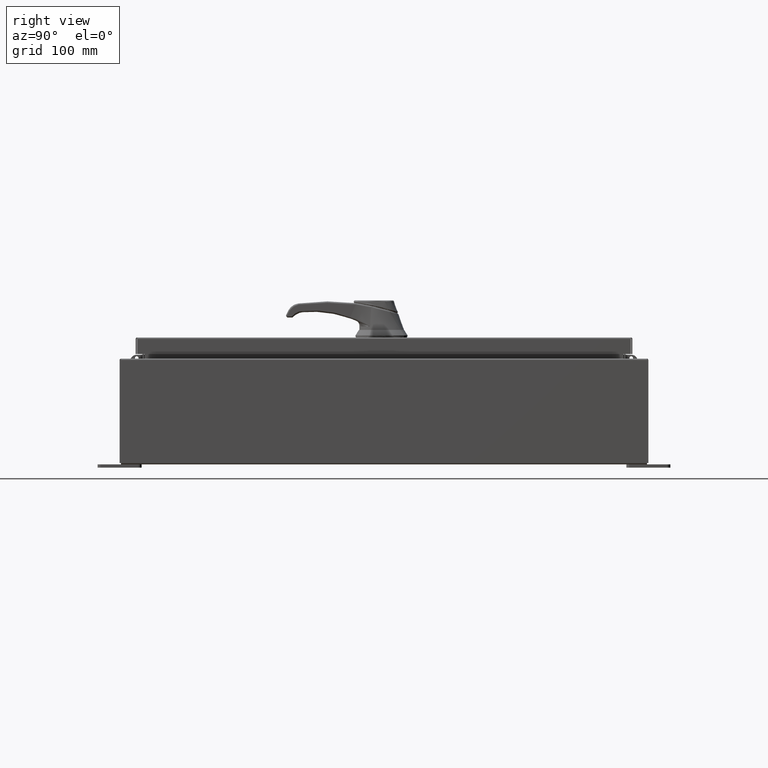
[diagram: clean part render]
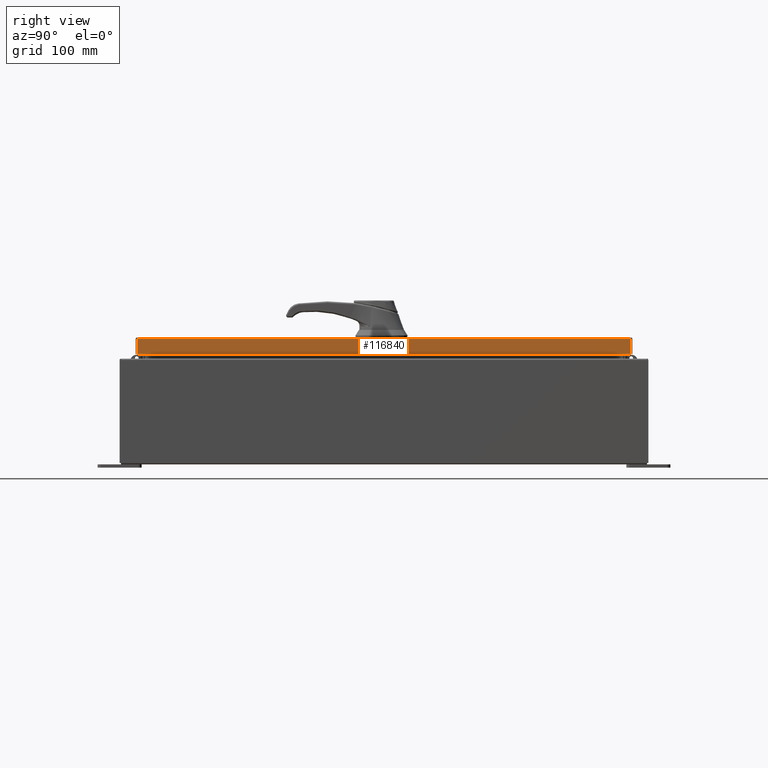
[diagram: same view with one face highlighted and labeled with its STEP entity id]
A machine part, right view. The second image highlights one B-rep face of the part: STEP entity #116840.
In plain terms, the highlighted planar face has unit normal (1, 0, 0).
Its self-contained STEP definition (entity closure, byte-faithful):
#2376 = DIRECTION ( 'NONE',  ( 2.532419924601866100E-015, 0.0000000000000000000, -1.000000000000000000 ) ) ;
#9225 = VERTEX_POINT ( 'NONE', #37275 ) ;
#10918 = DIRECTION ( 'NONE',  ( -2.532419924601866100E-015, -6.982962677686265900E-015, 1.000000000000000000 ) ) ;
#11048 = VECTOR ( 'NONE', #43816, 39.37007874015748100 ) ;
#13087 = VERTEX_POINT ( 'NONE', #14253 ) ;
#13472 = VECTOR ( 'NONE', #65820, 39.37007874015748100 ) ;
#14253 = CARTESIAN_POINT ( 'NONE',  ( 11.07799999999999900, -14.00515786437626900, -0.08770000000000008300 ) ) ;
#17236 = AXIS2_PLACEMENT_3D ( 'NONE', #66037, #57301, #2376 ) ;
#29769 = ORIENTED_EDGE ( 'NONE', *, *, #42940, .T. ) ;
#36531 = EDGE_CURVE ( 'NONE', #9225, #13087, #41509, .T. ) ;
#37275 = CARTESIAN_POINT ( 'NONE',  ( 11.07800000000000300, -14.00515786437626200, -0.9376999999999997600 ) ) ;
#38289 = LINE ( 'NONE', #107426, #11048 ) ;
#41509 = LINE ( 'NONE', #93356, #63013 ) ;
#41566 = CARTESIAN_POINT ( 'NONE',  ( 11.07800000000000300, -14.09399999999999900, -0.9376999999999997600 ) ) ;
#42940 = EDGE_CURVE ( 'NONE', #107337, #67216, #89386, .T. ) ;
#43816 = DIRECTION ( 'NONE',  ( 0.0000000000000000000, -1.000000000000000000, 0.0000000000000000000 ) ) ;
#44720 = ORIENTED_EDGE ( 'NONE', *, *, #36531, .F. ) ;
#51084 = EDGE_CURVE ( 'NONE', #67216, #13087, #38289, .T. ) ;
#51220 = LINE ( 'NONE', #41566, #99847 ) ;
#57301 = DIRECTION ( 'NONE',  ( 1.000000000000000000, 0.0000000000000000000, 2.532419924601866100E-015 ) ) ;
#63013 = VECTOR ( 'NONE', #10918, 39.37007874015748100 ) ;
#65820 = DIRECTION ( 'NONE',  ( -2.532419924601866100E-015, -6.982962677686265900E-015, 1.000000000000000000 ) ) ;
#66037 = CARTESIAN_POINT ( 'NONE',  ( 11.07799999999999900, 0.0000000000000000000, 2.831496158075105700E-014 ) ) ;
#67216 = VERTEX_POINT ( 'NONE', #85725 ) ;
#69122 = DIRECTION ( 'NONE',  ( 0.0000000000000000000, -1.000000000000000000, 0.0000000000000000000 ) ) ;
#73204 = EDGE_LOOP ( 'NONE', ( #44720, #105141, #29769, #107472 ) ) ;
#85725 = CARTESIAN_POINT ( 'NONE',  ( 11.07799999999999900, 14.00515786437626500, -0.08770000000000008300 ) ) ;
#89386 = LINE ( 'NONE', #93424, #13472 ) ;
#93356 = CARTESIAN_POINT ( 'NONE',  ( 11.07799999999999900, -14.00515786437626900, -0.07469999999999980800 ) ) ;
#93424 = CARTESIAN_POINT ( 'NONE',  ( 11.07799999999999900, 14.00515786437626900, 1.261124562427948200E-013 ) ) ;
#94642 = FACE_OUTER_BOUND ( 'NONE', #73204, .T. ) ;
#99847 = VECTOR ( 'NONE', #69122, 39.37007874015748100 ) ;
#102811 = PLANE ( 'NONE',  #17236 ) ;
#105141 = ORIENTED_EDGE ( 'NONE', *, *, #105729, .F. ) ;
#105729 = EDGE_CURVE ( 'NONE', #107337, #9225, #51220, .T. ) ;
#107337 = VERTEX_POINT ( 'NONE', #110742 ) ;
#107426 = CARTESIAN_POINT ( 'NONE',  ( 11.07799999999999900, 0.0000000000000000000, -0.08770000000000008300 ) ) ;
#107472 = ORIENTED_EDGE ( 'NONE', *, *, #51084, .T. ) ;
#110742 = CARTESIAN_POINT ( 'NONE',  ( 11.07800000000000300, 14.00515786437627200, -0.9376999999999997600 ) ) ;
#116840 = ADVANCED_FACE ( 'NONE', ( #94642 ), #102811, .T. ) ;